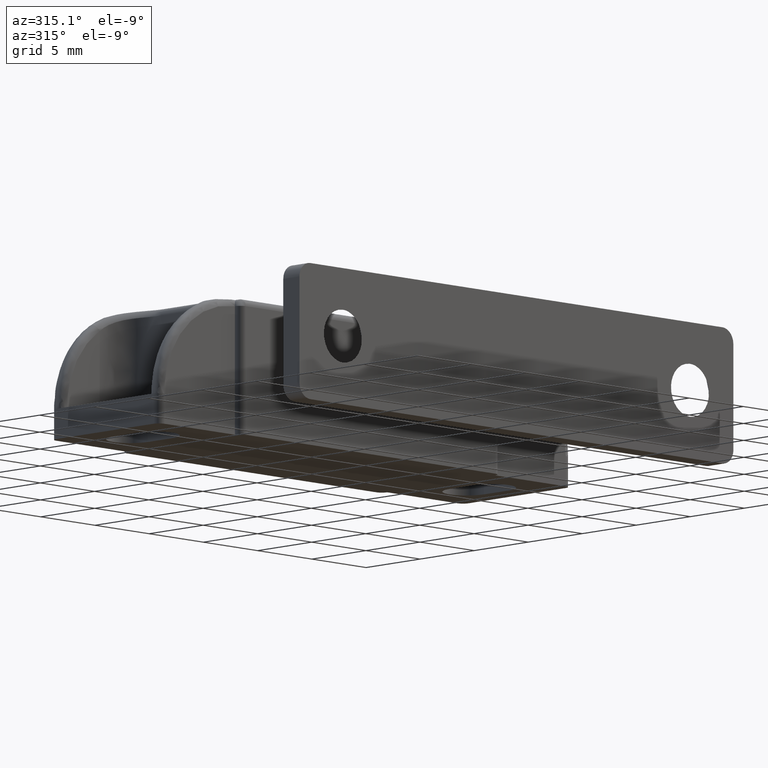
[diagram: clean part render]
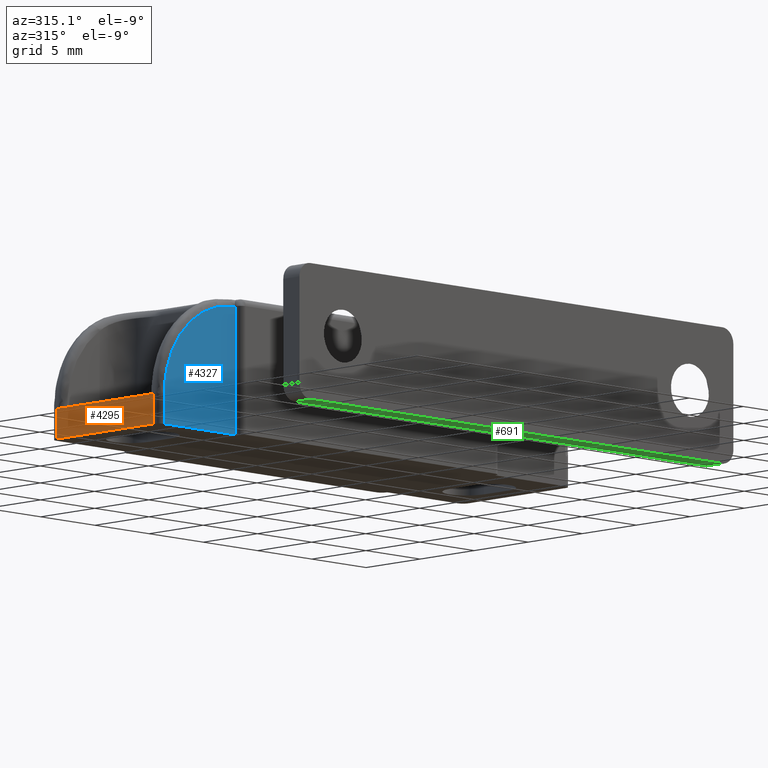
[diagram: same view with three faces highlighted in distinct colors, each labeled with its STEP entity id]
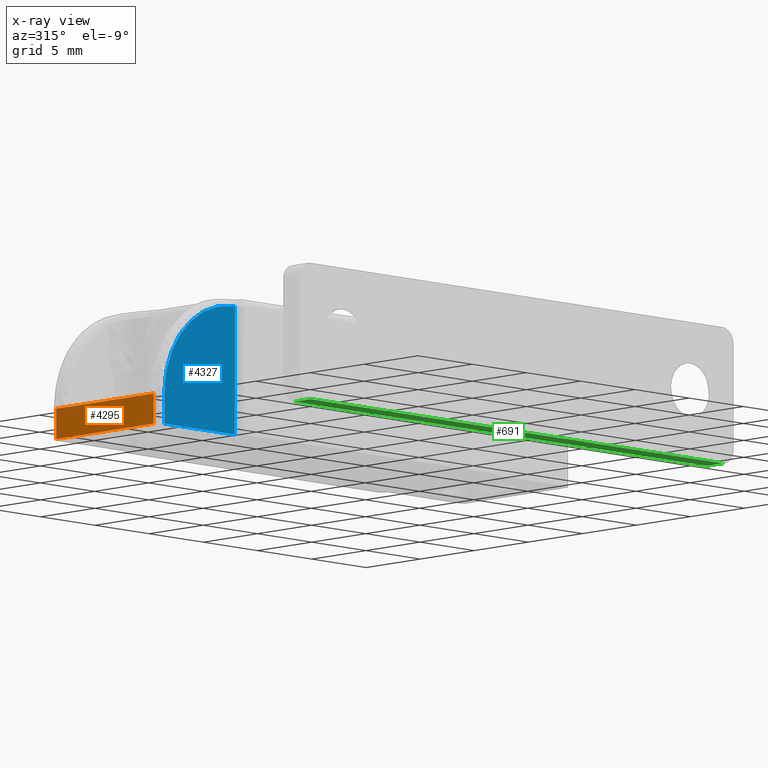
[diagram: x-ray of the same camera — body ghosted, the three highlighted faces saturated]
A machine part, auxiliary view with three faces highlighted in distinct colors.
The next image is the same camera in x-ray (body ghosted, the three faces saturated) — at least one of them is partly hidden behind the body in this view.
Their STEP definitions:

[orange] entity #4295 — the highlighted face is a freeform B-spline surface patch.
#2292=CARTESIAN_POINT('',(-19.0,4.499999999999949,2.0));
#2293=VERTEX_POINT('',#2292);
#2294=CARTESIAN_POINT('',(-19.0,-4.499999999999949,2.0));
#2295=VERTEX_POINT('',#2294);
#2296=CARTESIAN_POINT('',(-19.0,4.499999999999949,2.0));
#2297=CARTESIAN_POINT('',(-19.0,-4.499999999999949,2.0));
#2298=QUASI_UNIFORM_CURVE('',1,(#2296,#2297),.UNSPECIFIED.,.F.,.U.);
#2299=EDGE_CURVE('',#2293,#2295,#2298,.T.);
#3232=CARTESIAN_POINT('',(-19.0,-4.499999999999949,0.0));
#3233=VERTEX_POINT('',#3232);
#3253=CARTESIAN_POINT('',(-19.0,-4.499999999999949,0.0));
#3254=CARTESIAN_POINT('',(-19.0,-4.499999999999949,2.0));
#3255=QUASI_UNIFORM_CURVE('',1,(#3253,#3254),.UNSPECIFIED.,.F.,.U.);
#3256=EDGE_CURVE('',#3233,#2295,#3255,.T.);
#4144=CARTESIAN_POINT('',(-19.0,4.499999999999949,0.0));
#4145=VERTEX_POINT('',#4144);
#4163=CARTESIAN_POINT('',(-19.0,4.499999999999949,2.0));
#4164=CARTESIAN_POINT('',(-19.0,4.499999999999949,0.0));
#4165=QUASI_UNIFORM_CURVE('',1,(#4163,#4164),.UNSPECIFIED.,.F.,.U.);
#4166=EDGE_CURVE('',#2293,#4145,#4165,.T.);
#4280=CARTESIAN_POINT('',(-19.0,-4.949549982556199,2.099899996123612));
#4281=CARTESIAN_POINT('',(-19.0,-4.949549982556199,-0.099900049767792));
#4282=CARTESIAN_POINT('',(-19.0,4.949550223955010,2.099899996123612));
#4283=CARTESIAN_POINT('',(-19.0,4.949550223955010,-0.099900049767792));
#4284=B_SPLINE_SURFACE_WITH_KNOTS('',1,1,((#4280,#4282),(#4281,#4283)),.UNSPECIFIED.,.F.,.F.,.U.,(2,2),(2,2),(0.0,2.199800045891404),(0.0,9.899100206511209),.UNSPECIFIED.);
#4285=ORIENTED_EDGE('',*,*,#2299,.F.);
#4286=ORIENTED_EDGE('',*,*,#4166,.T.);
#4287=CARTESIAN_POINT('',(-19.0,4.499999999999949,0.0));
#4288=CARTESIAN_POINT('',(-19.0,-4.499999999999949,0.0));
#4289=QUASI_UNIFORM_CURVE('',1,(#4287,#4288),.UNSPECIFIED.,.F.,.U.);
#4290=EDGE_CURVE('',#4145,#3233,#4289,.T.);
#4291=ORIENTED_EDGE('',*,*,#4290,.T.);
#4292=ORIENTED_EDGE('',*,*,#3256,.T.);
#4293=EDGE_LOOP('',(#4285,#4286,#4291,#4292));
#4294=FACE_OUTER_BOUND('',#4293,.T.);
#4295=ADVANCED_FACE('',(#4294),#4284,.F.);

[blue] entity #4327 — the highlighted face is a freeform B-spline surface patch.
#2872=CARTESIAN_POINT('',(-12.0,-5.0,8.500000000000000));
#2873=VERTEX_POINT('',#2872);
#3015=CARTESIAN_POINT('',(-12.0,-5.0,0.0));
#3016=VERTEX_POINT('',#3015);
#3036=CARTESIAN_POINT('',(-12.0,-5.0,0.0));
#3037=CARTESIAN_POINT('',(-12.0,-5.0,8.500000000000000));
#3038=QUASI_UNIFORM_CURVE('',1,(#3036,#3037),.UNSPECIFIED.,.F.,.U.);
#3039=EDGE_CURVE('',#3016,#2873,#3038,.T.);
#3112=CARTESIAN_POINT('',(-18.500000000000000,-5.0,2.0));
#3113=VERTEX_POINT('',#3112);
#3127=CARTESIAN_POINT('',(-12.0,-5.0,8.500000000000000));
#3128=CARTESIAN_POINT('',(-18.500000000000004,-4.999999999999999,8.500000000000000));
#3129=CARTESIAN_POINT('',(-18.500000000000000,-5.0,2.0));
#3137=(BOUNDED_CURVE()B_SPLINE_CURVE(2,(#3127,#3128,#3129),.UNSPECIFIED.,.F.,.U.)CURVE()GEOMETRIC_REPRESENTATION_ITEM()QUASI_UNIFORM_CURVE()RATIONAL_B_SPLINE_CURVE((1.0,0.707106781186547,1.0))REPRESENTATION_ITEM(''));
#3138=EDGE_CURVE('',#2873,#3113,#3137,.T.);
#3230=CARTESIAN_POINT('',(-18.500000000000000,-5.0,0.0));
#3231=VERTEX_POINT('',#3230);
#3247=CARTESIAN_POINT('',(-18.500000000000000,-5.0,2.0));
#3248=CARTESIAN_POINT('',(-18.500000000000000,-5.0,0.0));
#3249=QUASI_UNIFORM_CURVE('',1,(#3247,#3248),.UNSPECIFIED.,.F.,.U.);
#3250=EDGE_CURVE('',#3113,#3231,#3249,.T.);
#4312=CARTESIAN_POINT('',(-18.824674987401739,-5.0,8.924574983525353));
#4313=CARTESIAN_POINT('',(-11.675324838254671,-5.0,8.924574983525353));
#4314=CARTESIAN_POINT('',(-18.824674987401739,-5.0,-0.424575211513117));
#4315=CARTESIAN_POINT('',(-11.675324838254671,-5.0,-0.424575211513117));
#4316=B_SPLINE_SURFACE_WITH_KNOTS('',1,1,((#4312,#4314),(#4313,#4315)),.UNSPECIFIED.,.F.,.F.,.U.,(2,2),(2,2),(0.0,7.149350149147070),(0.0,9.349150195038471),.UNSPECIFIED.);
#4317=ORIENTED_EDGE('',*,*,#3138,.T.);
#4318=ORIENTED_EDGE('',*,*,#3250,.T.);
#4319=CARTESIAN_POINT('',(-12.0,-5.0,0.0));
#4320=CARTESIAN_POINT('',(-18.500000000000000,-5.0,0.0));
#4321=QUASI_UNIFORM_CURVE('',1,(#4319,#4320),.UNSPECIFIED.,.F.,.U.);
#4322=EDGE_CURVE('',#3016,#3231,#4321,.T.);
#4323=ORIENTED_EDGE('',*,*,#4322,.F.);
#4324=ORIENTED_EDGE('',*,*,#3039,.T.);
#4325=EDGE_LOOP('',(#4317,#4318,#4323,#4324));
#4326=FACE_OUTER_BOUND('',#4325,.T.);
#4327=ADVANCED_FACE('',(#4326),#4316,.F.);

[green] entity #691 — the highlighted face is a freeform B-spline surface patch.
#485=CARTESIAN_POINT('',(-18.999999999997200,-19.0,0.0));
#486=VERTEX_POINT('',#485);
#507=CARTESIAN_POINT('',(-18.999999999997200,-17.500000000000000,0.0));
#508=VERTEX_POINT('',#507);
#522=CARTESIAN_POINT('',(-18.999999999997200,-19.0,0.0));
#523=CARTESIAN_POINT('',(-18.999999999997200,-17.500000000000000,0.0));
#524=QUASI_UNIFORM_CURVE('',1,(#522,#523),.UNSPECIFIED.,.F.,.U.);
#525=EDGE_CURVE('',#486,#508,#524,.T.);
#546=CARTESIAN_POINT('',(18.999999999999751,-17.500000000000000,0.0));
#547=VERTEX_POINT('',#546);
#568=CARTESIAN_POINT('',(18.999999999999751,-19.0,0.0));
#569=VERTEX_POINT('',#568);
#583=CARTESIAN_POINT('',(18.999999999999751,-17.500000000000000,0.0));
#584=CARTESIAN_POINT('',(18.999999999999751,-19.0,0.0));
#585=QUASI_UNIFORM_CURVE('',1,(#583,#584),.UNSPECIFIED.,.F.,.U.);
#586=EDGE_CURVE('',#547,#569,#585,.T.);
#672=CARTESIAN_POINT('',(-20.898099926345679,-17.425075002907288,0.0));
#673=CARTESIAN_POINT('',(20.898100945587650,-17.425075002907288,0.0));
#674=CARTESIAN_POINT('',(-20.898099926345679,-19.074925037325841,0.0));
#675=CARTESIAN_POINT('',(20.898100945587650,-19.074925037325841,0.0));
#676=B_SPLINE_SURFACE_WITH_KNOTS('',1,1,((#672,#674),(#673,#675)),.UNSPECIFIED.,.F.,.F.,.U.,(2,2),(2,2),(0.0,41.796200871933323),(0.041708334948495,0.958291687403247),.UNSPECIFIED.);
#677=CARTESIAN_POINT('',(-18.999999999997200,-17.500000000000000,0.0));
#678=CARTESIAN_POINT('',(18.999999999999751,-17.500000000000000,0.0));
#679=QUASI_UNIFORM_CURVE('',1,(#677,#678),.UNSPECIFIED.,.F.,.U.);
#680=EDGE_CURVE('',#508,#547,#679,.T.);
#681=ORIENTED_EDGE('',*,*,#680,.T.);
#682=ORIENTED_EDGE('',*,*,#586,.T.);
#683=CARTESIAN_POINT('',(18.999999999999751,-19.0,0.0));
#684=CARTESIAN_POINT('',(-18.999999999997200,-19.0,0.0));
#685=QUASI_UNIFORM_CURVE('',1,(#683,#684),.UNSPECIFIED.,.F.,.U.);
#686=EDGE_CURVE('',#569,#486,#685,.T.);
#687=ORIENTED_EDGE('',*,*,#686,.T.);
#688=ORIENTED_EDGE('',*,*,#525,.T.);
#689=EDGE_LOOP('',(#681,#682,#687,#688));
#690=FACE_OUTER_BOUND('',#689,.T.);
#691=ADVANCED_FACE('',(#690),#676,.T.);